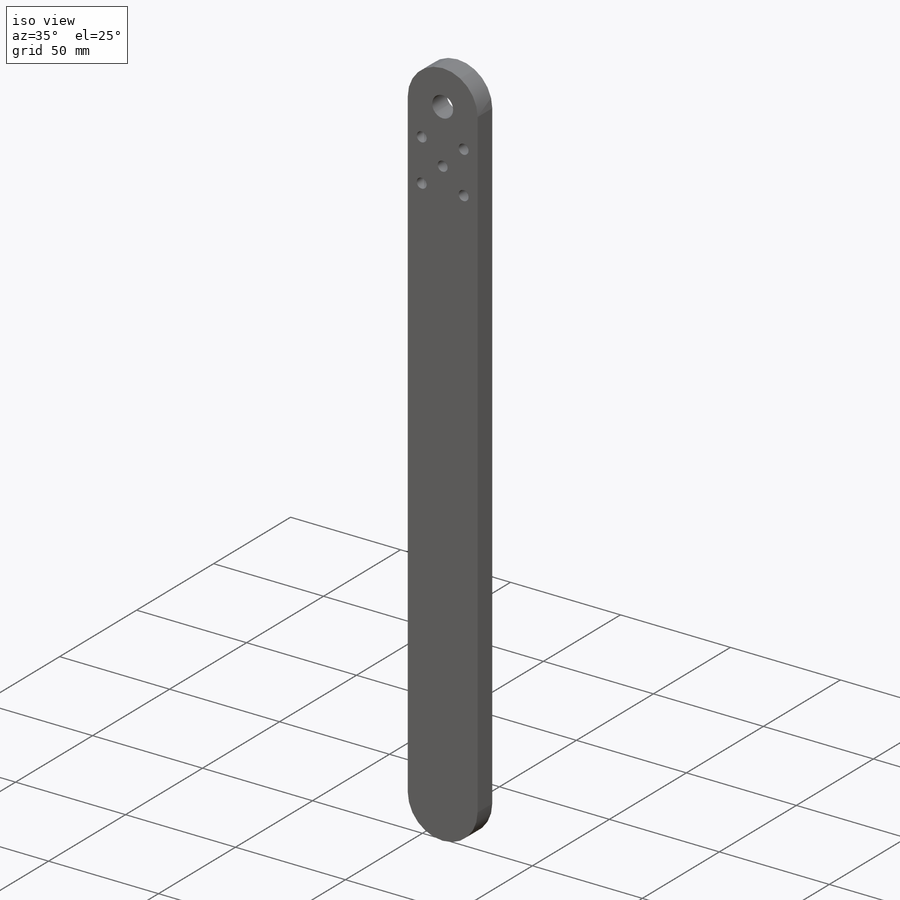
[diagram: iso view]
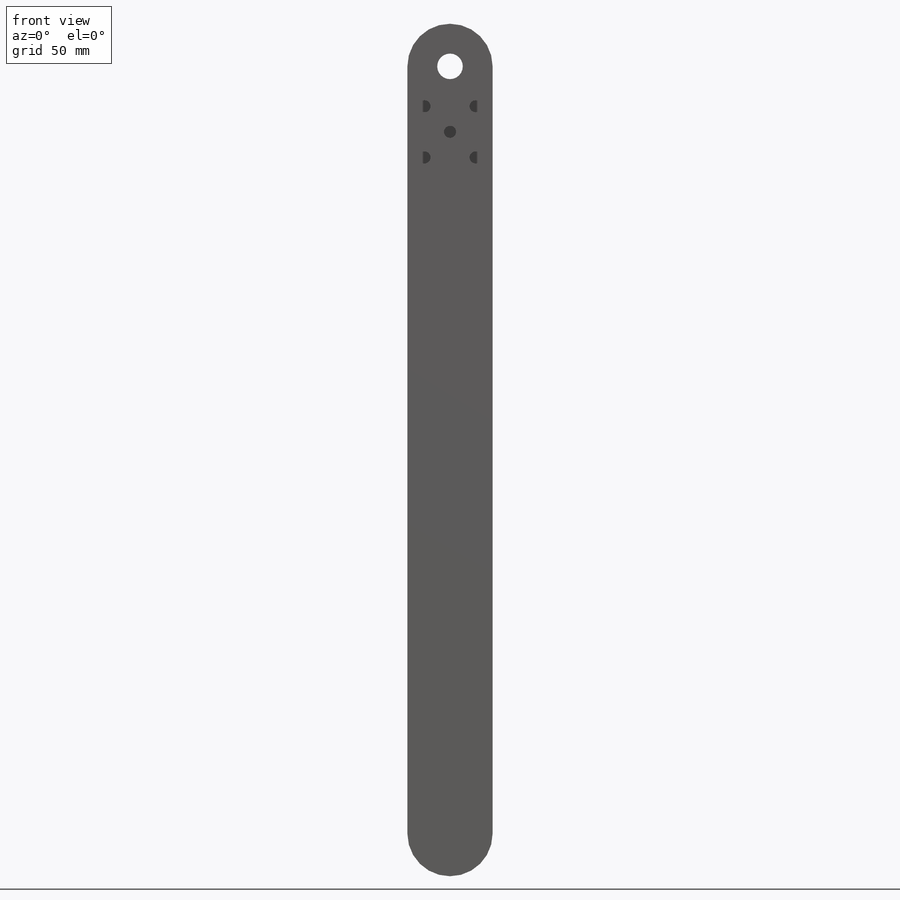
[diagram: front view]
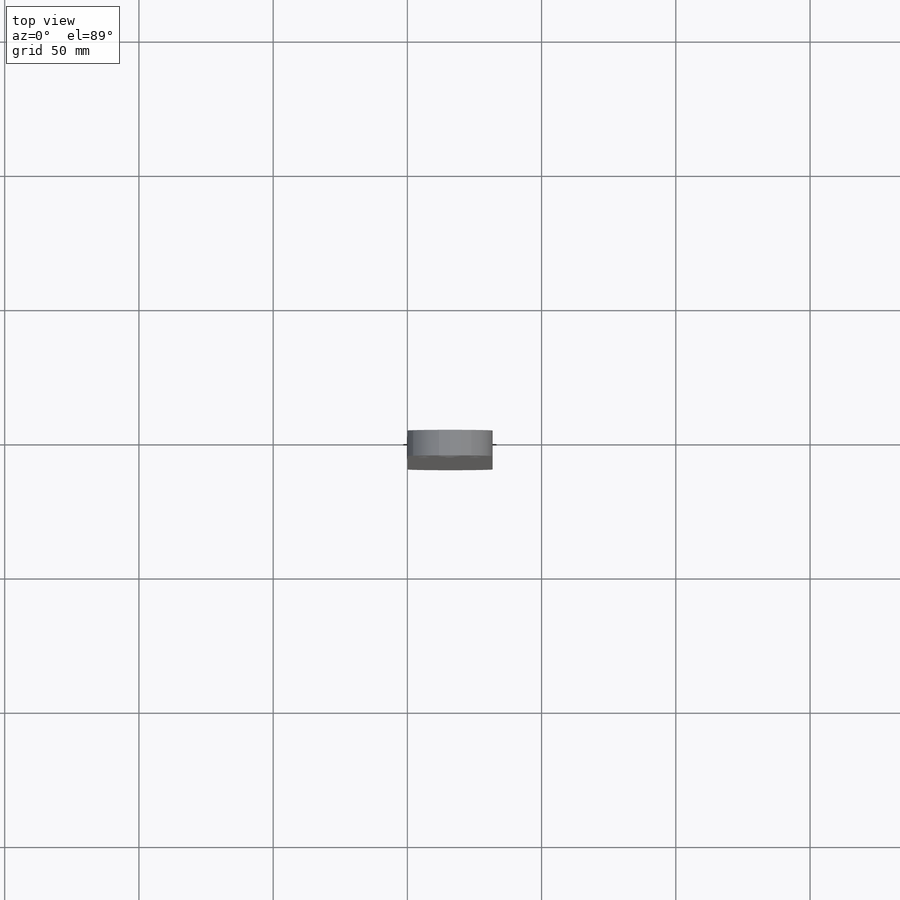
[diagram: top view]
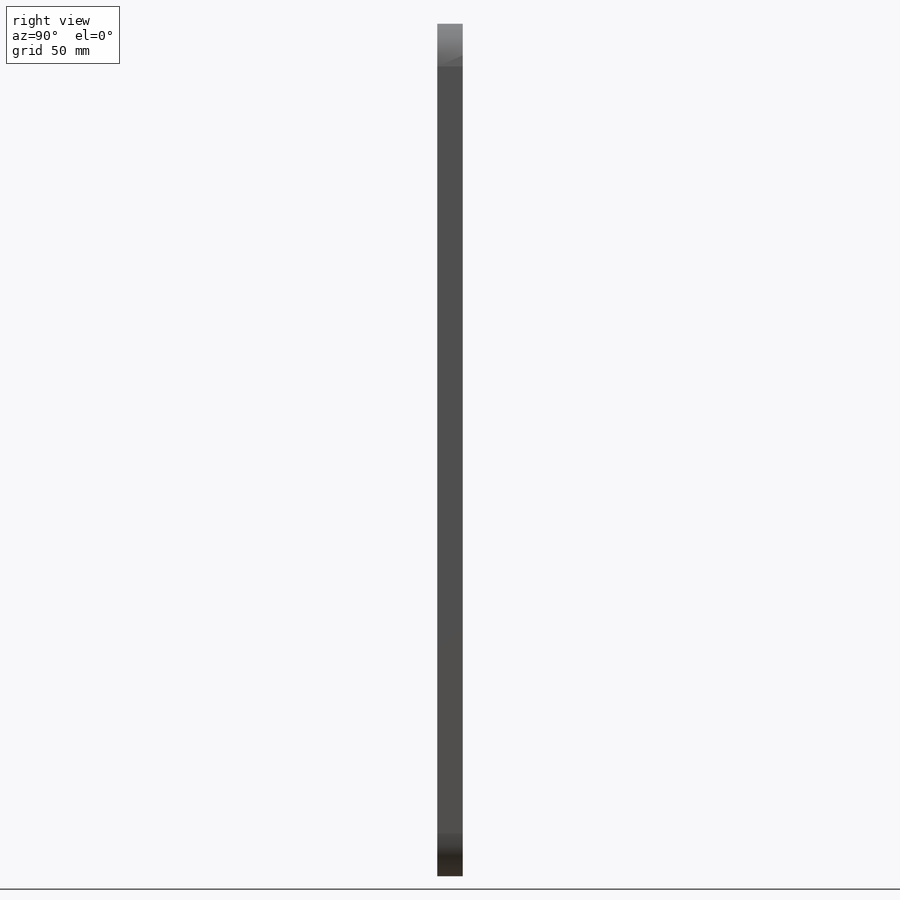
[diagram: right view]
SOLIDWORKS PART (.sldprt)
format: sldprt  version: not decoded by parser v0  size: 189,440 bytes
history: native  units: mm
features: sketch x5, hole x2, material x1, extrude x1, fillet x1 (+13 scaffold rows collapsed)
feature tree (23):
  scaffold x13  (default folders/planes/origin — collapsed)
  material  "Material <not specified>"
  sketch  "Sketch1"  dims[c1.D1=~292.139878mm c1.D2=25.4mm c2.D1=~317.539878mm c2.D2=31.75mm]
  extrude  "Boss-Extrude1"  Depth=9.525mm
  fillet  "Fillet1"  Radius=15.875mm
  hole  "3/8 (0.375) Diameter Hole1"  Diameter=9.525mm Depth=9.525mm
  sketch  "Sketch3"
  sketch  "Sketch2"  dims[hole-wizard template sketch: 61 standard entries collapsed; hole parameters above]
  hole  "#8 Clearance Hole1"  Diameter=4.4958mm Depth=7.62mm
  sketch  "Sketch4"
  sketch  "Sketch5"  dims[hole-wizard template sketch: 60 standard entries collapsed; hole parameters kept: c18.Thru Hole Depth=7.62mm]
decode coverage: 7 of 9 modeling features carry decoded parameters
note: ~ marks probable driven/reference dimensions
note: suppression state not decoded; provenance and decode notes live in map.json
